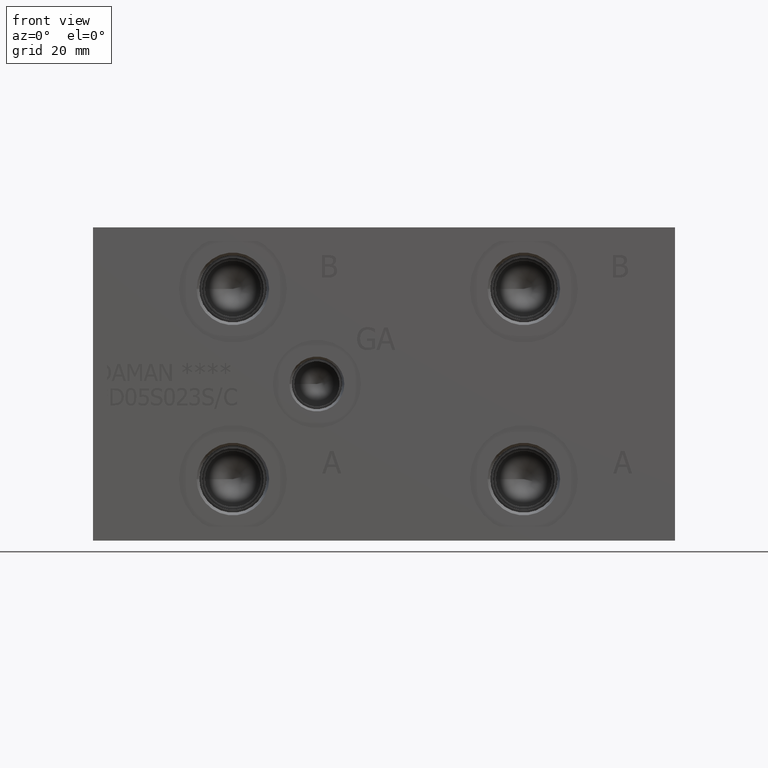
[diagram: clean part render]
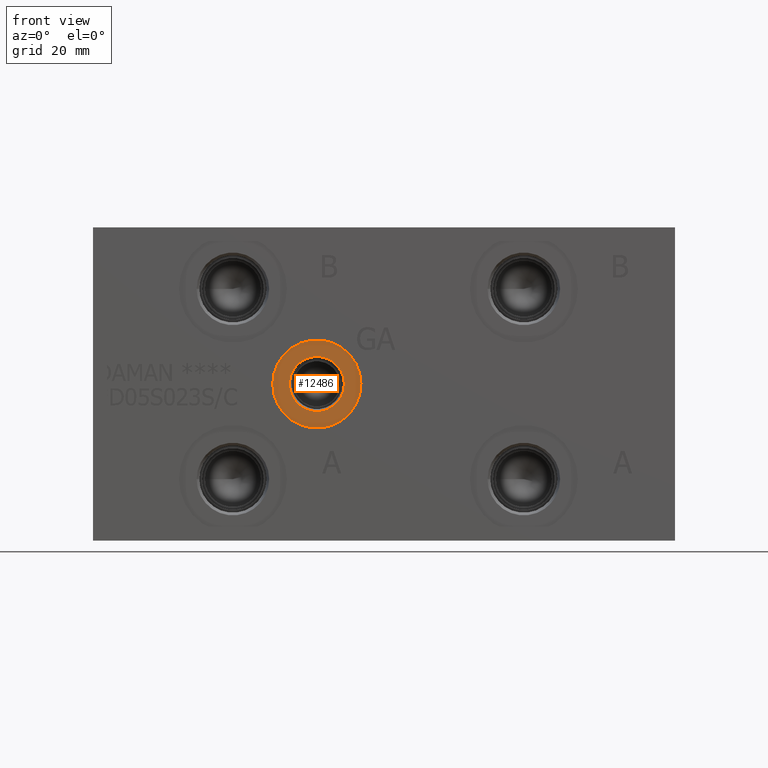
[diagram: same view with one face highlighted and labeled with its STEP entity id]
A machine part, front view. The second image highlights one B-rep face of the part: STEP entity #12486.
In plain terms, the highlighted planar face has unit normal (0, 1, 0).
Its self-contained STEP definition (entity closure, byte-faithful):
#530=CIRCLE('',#13171,12.5095);
#531=CIRCLE('',#13172,12.5095);
#532=CIRCLE('',#13174,7.7978);
#533=CIRCLE('',#13175,7.7978);
#1031=FACE_BOUND('',#2369,.T.);
#1655=FACE_OUTER_BOUND('',#2368,.T.);
#2368=EDGE_LOOP('',(#10794,#10795));
#2369=EDGE_LOOP('',(#10796,#10797));
#5772=VERTEX_POINT('',#21577);
#5773=VERTEX_POINT('',#21579);
#5774=VERTEX_POINT('',#21583);
#5775=VERTEX_POINT('',#21584);
#7483=EDGE_CURVE('',#5772,#5773,#530,.T.);
#7484=EDGE_CURVE('',#5773,#5772,#531,.T.);
#7485=EDGE_CURVE('',#5774,#5775,#532,.T.);
#7486=EDGE_CURVE('',#5775,#5774,#533,.T.);
#10794=ORIENTED_EDGE('',*,*,#7484,.F.);
#10795=ORIENTED_EDGE('',*,*,#7483,.F.);
#10796=ORIENTED_EDGE('',*,*,#7485,.T.);
#10797=ORIENTED_EDGE('',*,*,#7486,.T.);
#11406=PLANE('',#13173);
#12486=ADVANCED_FACE('',(#1655,#1031),#11406,.F.);
#13171=AXIS2_PLACEMENT_3D('',#21580,#15597,#15598);
#13172=AXIS2_PLACEMENT_3D('',#21581,#15599,#15600);
#13173=AXIS2_PLACEMENT_3D('',#21582,#15601,#15602);
#13174=AXIS2_PLACEMENT_3D('',#21585,#15603,#15604);
#13175=AXIS2_PLACEMENT_3D('',#21586,#15605,#15606);
#15597=DIRECTION('center_axis',(0.,1.,0.));
#15598=DIRECTION('ref_axis',(1.,0.,0.));
#15599=DIRECTION('center_axis',(0.,1.,0.));
#15600=DIRECTION('ref_axis',(1.,0.,0.));
#15601=DIRECTION('center_axis',(0.,1.,0.));
#15602=DIRECTION('ref_axis',(0.,0.,1.));
#15603=DIRECTION('center_axis',(0.,1.,0.));
#15604=DIRECTION('ref_axis',(1.,0.,0.));
#15605=DIRECTION('center_axis',(0.,1.,0.));
#15606=DIRECTION('ref_axis',(1.,0.,0.));
#21577=CARTESIAN_POINT('',(50.9905,0.7874,44.45));
#21579=CARTESIAN_POINT('',(76.0095,0.7874,44.45));
#21580=CARTESIAN_POINT('Origin',(63.5,0.7874,44.45));
#21581=CARTESIAN_POINT('Origin',(63.5,0.7874,44.45));
#21582=CARTESIAN_POINT('Origin',(71.2978,0.7874,44.45));
#21583=CARTESIAN_POINT('',(71.2978,0.7874,44.45));
#21584=CARTESIAN_POINT('',(55.7022,0.787400000000001,44.45));
#21585=CARTESIAN_POINT('Origin',(63.5,0.7874,44.45));
#21586=CARTESIAN_POINT('Origin',(63.5,0.7874,44.45));